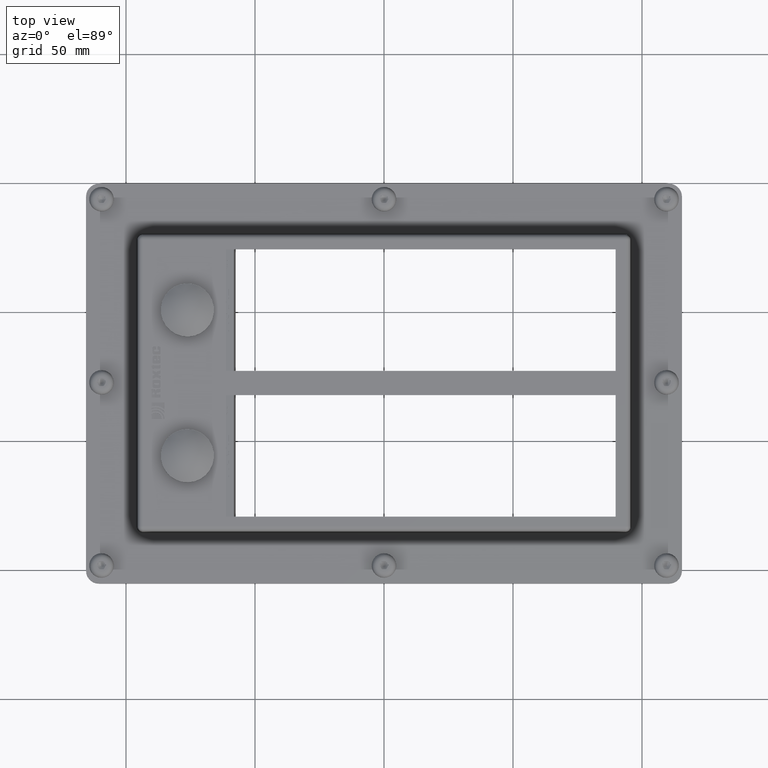
[diagram: clean part render]
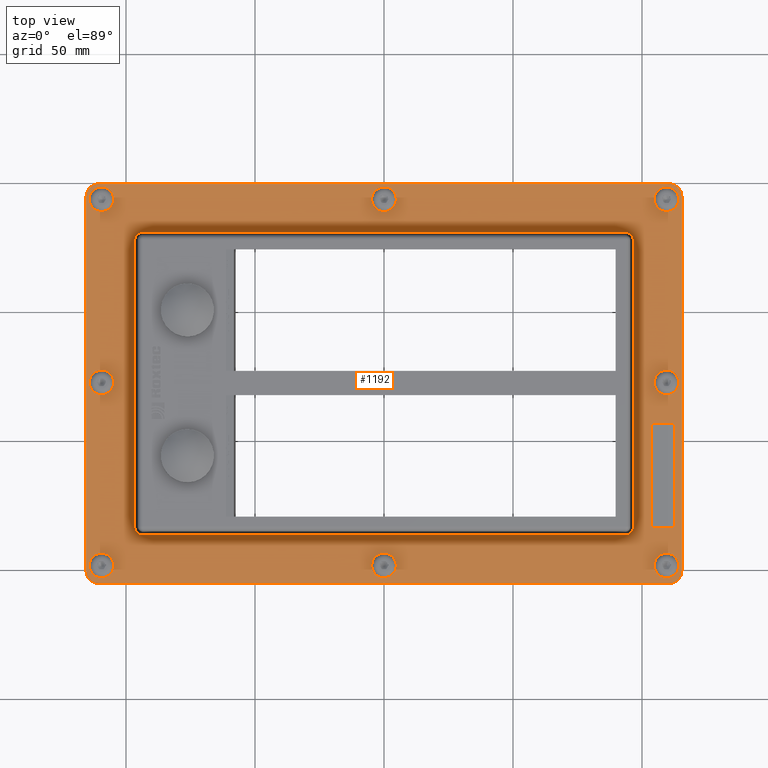
[diagram: same view with one face highlighted and labeled with its STEP entity id]
A machine part, top view. The second image highlights one B-rep face of the part: STEP entity #1192.
In plain terms, the highlighted planar face has unit normal (0, 0, 1).
Its self-contained STEP definition (entity closure, byte-faithful):
#219=CARTESIAN_POINT('',(112.50000000000009,-43.750000000000007,18.500000000000004));
#220=VERTEX_POINT('',#219);
#227=CARTESIAN_POINT('',(103.50000000000009,-43.750000000000007,18.500000000000004));
#228=VERTEX_POINT('',#227);
#229=CARTESIAN_POINT('',(103.50000000000009,-43.750000000000007,18.500000000000004));
#230=DIRECTION('',(1.0,0.0,0.0));
#231=VECTOR('',#230,9.0);
#232=LINE('',#229,#231);
#233=EDGE_CURVE('',#228,#220,#232,.T.);
#258=CARTESIAN_POINT('',(103.50000000000009,-84.250000000000028,18.500000000000004));
#259=VERTEX_POINT('',#258);
#260=CARTESIAN_POINT('',(103.50000000000009,-84.250000000000028,18.500000000000004));
#261=DIRECTION('',(0.0,1.0,0.0));
#262=VECTOR('',#261,40.500000000000007);
#263=LINE('',#260,#262);
#264=EDGE_CURVE('',#259,#228,#263,.T.);
#289=CARTESIAN_POINT('',(112.50000000000009,-84.250000000000028,18.500000000000004));
#290=VERTEX_POINT('',#289);
#291=CARTESIAN_POINT('',(112.50000000000009,-84.250000000000028,18.500000000000004));
#292=DIRECTION('',(-1.0,0.0,0.0));
#293=VECTOR('',#292,9.0);
#294=LINE('',#291,#293);
#295=EDGE_CURVE('',#290,#259,#294,.T.);
#318=CARTESIAN_POINT('',(112.50000000000009,-43.750000000000007,18.500000000000004));
#319=DIRECTION('',(0.0,-1.0,0.0));
#320=VECTOR('',#319,40.500000000000007);
#321=LINE('',#318,#320);
#322=EDGE_CURVE('',#220,#290,#321,.T.);
#423=CARTESIAN_POINT('',(-96.617850793561018,-83.86796502436853,18.500000000000004));
#424=VERTEX_POINT('',#423);
#432=CARTESIAN_POINT('',(-93.61796502436853,-86.867850793561018,18.500000000000004));
#433=VERTEX_POINT('',#432);
#434=CARTESIAN_POINT('',(-93.617736558403806,-83.867736558403806,18.500000000000004));
#435=DIRECTION('',(0.0,0.0,1.0));
#436=DIRECTION('',(-0.707106781186548,-0.707106781186548,0.0));
#437=AXIS2_PLACEMENT_3D('',#434,#435,#436);
#438=ELLIPSE('',#437,3.000228465964866,3.000000000000003);
#439=EDGE_CURVE('',#424,#433,#438,.T.);
#467=CARTESIAN_POINT('',(-96.617850793561018,27.367965024368459,18.500000000000004));
#468=VERTEX_POINT('',#467);
#476=CARTESIAN_POINT('',(-96.617850793561018,27.367965024368459,18.500000000000004));
#477=DIRECTION('',(0.0,-1.0,0.0));
#478=VECTOR('',#477,111.235930048737);
#479=LINE('',#476,#478);
#480=EDGE_CURVE('',#468,#424,#479,.T.);
#497=CARTESIAN_POINT('',(93.61796502436853,-86.867850793561004,18.500000000000004));
#498=VERTEX_POINT('',#497);
#515=CARTESIAN_POINT('',(-93.61796502436853,-86.867850793561004,18.500000000000004));
#516=DIRECTION('',(1.0,0.0,0.0));
#517=VECTOR('',#516,187.23593004873706);
#518=LINE('',#515,#517);
#519=EDGE_CURVE('',#433,#498,#518,.T.);
#607=CARTESIAN_POINT('',(-93.617965024368573,30.367850793560972,18.500000000000004));
#608=VERTEX_POINT('',#607);
#616=CARTESIAN_POINT('',(-93.617736558403863,27.36773655840377,18.500000000000004));
#617=DIRECTION('',(0.0,0.0,1.0));
#618=DIRECTION('',(-0.707106781186547,0.707106781186548,0.0));
#619=AXIS2_PLACEMENT_3D('',#616,#617,#618);
#620=ELLIPSE('',#619,3.000228465964869,3.000000000000007);
#621=EDGE_CURVE('',#608,#468,#620,.T.);
#715=CARTESIAN_POINT('',(96.617850793561018,-83.867965024368488,18.500000000000004));
#716=VERTEX_POINT('',#715);
#734=CARTESIAN_POINT('',(93.617736558403863,-83.867736558403806,18.500000000000004));
#735=DIRECTION('',(0.0,0.0,1.0));
#736=DIRECTION('',(0.707106781186555,-0.70710678118654,0.0));
#737=AXIS2_PLACEMENT_3D('',#734,#735,#736);
#738=ELLIPSE('',#737,3.000228465964856,2.999999999999993);
#739=EDGE_CURVE('',#498,#716,#738,.T.);
#751=CARTESIAN_POINT('',(93.61796502436853,30.367850793561011,18.500000000000004));
#752=VERTEX_POINT('',#751);
#760=CARTESIAN_POINT('',(93.61796502436853,30.367850793561011,18.500000000000004));
#761=DIRECTION('',(-1.0,0.0,0.0));
#762=VECTOR('',#761,187.23593004873709);
#763=LINE('',#760,#762);
#764=EDGE_CURVE('',#752,#608,#763,.T.);
#781=CARTESIAN_POINT('',(96.617850793561018,27.367965024368495,18.500000000000004));
#782=VERTEX_POINT('',#781);
#799=CARTESIAN_POINT('',(96.617850793561018,-83.867965024368488,18.500000000000004));
#800=DIRECTION('',(0.0,1.0,0.0));
#801=VECTOR('',#800,111.23593004873698);
#802=LINE('',#799,#801);
#803=EDGE_CURVE('',#716,#782,#802,.T.);
#898=CARTESIAN_POINT('',(93.617736558403806,27.367736558403788,18.500000000000004));
#899=DIRECTION('',(0.0,0.0,1.0));
#900=DIRECTION('',(0.707106781186552,0.707106781186543,0.0));
#901=AXIS2_PLACEMENT_3D('',#898,#899,#900);
#902=ELLIPSE('',#901,3.000228465964866,3.000000000000004);
#903=EDGE_CURVE('',#782,#752,#902,.T.);
#1013=CARTESIAN_POINT('',(-127.05000000000011,-113.50000000000011,18.500000000000004));
#1014=DIRECTION('',(0.0,0.0,1.0));
#1015=DIRECTION('',(1.0,0.0,0.0));
#1016=AXIS2_PLACEMENT_3D('',#1013,#1014,#1015);
#1017=PLANE('',#1016);
#1018=CARTESIAN_POINT('',(-110.50000000000003,-105.7500000000001,18.500000000000004));
#1019=VERTEX_POINT('',#1018);
#1020=CARTESIAN_POINT('',(-115.50000000000003,-100.7500000000001,18.500000000000004));
#1021=VERTEX_POINT('',#1020);
#1022=CARTESIAN_POINT('',(-110.50000000000003,-100.7500000000001,18.500000000000004));
#1023=DIRECTION('',(0.0,0.0,-1.0));
#1024=DIRECTION('',(-0.707106781186547,-0.707106781186547,0.0));
#1025=AXIS2_PLACEMENT_3D('',#1022,#1023,#1024);
#1026=CIRCLE('',#1025,5.000000000000001);
#1027=EDGE_CURVE('',#1019,#1021,#1026,.T.);
#1028=ORIENTED_EDGE('',*,*,#1027,.F.);
#1029=CARTESIAN_POINT('',(110.5000000000001,-105.7500000000001,18.500000000000004));
#1030=VERTEX_POINT('',#1029);
#1031=CARTESIAN_POINT('',(110.5000000000001,-105.7500000000001,18.500000000000004));
#1032=DIRECTION('',(-1.0,0.0,0.0));
#1033=VECTOR('',#1032,221.00000000000011);
#1034=LINE('',#1031,#1033);
#1035=EDGE_CURVE('',#1030,#1019,#1034,.T.);
#1036=ORIENTED_EDGE('',*,*,#1035,.F.);
#1037=CARTESIAN_POINT('',(115.5000000000001,-100.7500000000001,18.500000000000004));
#1038=VERTEX_POINT('',#1037);
#1039=CARTESIAN_POINT('',(110.5000000000001,-100.7500000000001,18.500000000000004));
#1040=DIRECTION('',(0.0,0.0,-1.0));
#1041=DIRECTION('',(0.707106781186547,-0.707106781186547,0.0));
#1042=AXIS2_PLACEMENT_3D('',#1039,#1040,#1041);
#1043=CIRCLE('',#1042,5.000000000000001);
#1044=EDGE_CURVE('',#1038,#1030,#1043,.T.);
#1045=ORIENTED_EDGE('',*,*,#1044,.F.);
#1046=CARTESIAN_POINT('',(115.5000000000001,44.250000000000057,18.500000000000004));
#1047=VERTEX_POINT('',#1046);
#1048=CARTESIAN_POINT('',(115.5000000000001,44.250000000000057,18.500000000000004));
#1049=DIRECTION('',(0.0,-1.0,0.0));
#1050=VECTOR('',#1049,145.00000000000017);
#1051=LINE('',#1048,#1050);
#1052=EDGE_CURVE('',#1047,#1038,#1051,.T.);
#1053=ORIENTED_EDGE('',*,*,#1052,.F.);
#1054=CARTESIAN_POINT('',(110.5000000000001,49.250000000000057,18.500000000000004));
#1055=VERTEX_POINT('',#1054);
#1056=CARTESIAN_POINT('',(110.5000000000001,44.250000000000057,18.500000000000004));
#1057=DIRECTION('',(0.0,0.0,-1.0));
#1058=DIRECTION('',(0.707106781186545,0.70710678118655,0.0));
#1059=AXIS2_PLACEMENT_3D('',#1056,#1057,#1058);
#1060=CIRCLE('',#1059,4.999999999999996);
#1061=EDGE_CURVE('',#1055,#1047,#1060,.T.);
#1062=ORIENTED_EDGE('',*,*,#1061,.F.);
#1063=CARTESIAN_POINT('',(-110.5000000000001,49.25,18.500000000000004));
#1064=VERTEX_POINT('',#1063);
#1065=CARTESIAN_POINT('',(-110.5000000000001,49.25,18.500000000000004));
#1066=DIRECTION('',(1.0,0.0,0.0));
#1067=VECTOR('',#1066,221.0000000000002);
#1068=LINE('',#1065,#1067);
#1069=EDGE_CURVE('',#1064,#1055,#1068,.T.);
#1070=ORIENTED_EDGE('',*,*,#1069,.F.);
#1071=CARTESIAN_POINT('',(-115.5000000000001,44.250000000000007,18.500000000000004));
#1072=VERTEX_POINT('',#1071);
#1073=CARTESIAN_POINT('',(-110.5000000000001,44.250000000000007,18.500000000000004));
#1074=DIRECTION('',(0.0,0.0,-1.0));
#1075=DIRECTION('',(-0.707106781186547,0.707106781186547,0.0));
#1076=AXIS2_PLACEMENT_3D('',#1073,#1074,#1075);
#1077=CIRCLE('',#1076,5.000000000000001);
#1078=EDGE_CURVE('',#1072,#1064,#1077,.T.);
#1079=ORIENTED_EDGE('',*,*,#1078,.F.);
#1080=CARTESIAN_POINT('',(-115.50000000000003,-100.7500000000001,18.500000000000004));
#1081=DIRECTION('',(0.0,1.0,0.0));
#1082=VECTOR('',#1081,145.00000000000011);
#1083=LINE('',#1080,#1082);
#1084=EDGE_CURVE('',#1021,#1072,#1083,.T.);
#1085=ORIENTED_EDGE('',*,*,#1084,.F.);
#1086=EDGE_LOOP('',(#1028,#1036,#1045,#1053,#1062,#1070,#1079,#1085));
#1087=FACE_OUTER_BOUND('',#1086,.T.);
#1088=ORIENTED_EDGE('',*,*,#233,.T.);
#1089=ORIENTED_EDGE('',*,*,#322,.T.);
#1090=ORIENTED_EDGE('',*,*,#295,.T.);
#1091=ORIENTED_EDGE('',*,*,#264,.T.);
#1092=EDGE_LOOP('',(#1088,#1089,#1090,#1091));
#1093=FACE_BOUND('',#1092,.T.);
#1094=CARTESIAN_POINT('',(2.750000000000001,43.250000000000163,18.500000000000004));
#1095=VERTEX_POINT('',#1094);
#1096=CARTESIAN_POINT('',(-7.915805E-032,43.250000000000163,18.500000000000004));
#1097=DIRECTION('',(0.0,0.0,-1.0));
#1098=DIRECTION('',(-1.0,0.0,0.0));
#1099=AXIS2_PLACEMENT_3D('',#1096,#1097,#1098);
#1100=CIRCLE('',#1099,2.750000000000001);
#1101=EDGE_CURVE('',#1095,#1095,#1100,.T.);
#1102=ORIENTED_EDGE('',*,*,#1101,.T.);
#1103=EDGE_LOOP('',(#1102));
#1104=FACE_BOUND('',#1103,.T.);
#1105=CARTESIAN_POINT('',(112.25000000000023,43.250000000000227,18.500000000000004));
#1106=VERTEX_POINT('',#1105);
#1107=CARTESIAN_POINT('',(109.50000000000024,43.250000000000227,18.500000000000004));
#1108=DIRECTION('',(0.0,0.0,-1.0));
#1109=DIRECTION('',(-1.0,0.0,0.0));
#1110=AXIS2_PLACEMENT_3D('',#1107,#1108,#1109);
#1111=CIRCLE('',#1110,2.750000000000001);
#1112=EDGE_CURVE('',#1106,#1106,#1111,.T.);
#1113=ORIENTED_EDGE('',*,*,#1112,.T.);
#1114=EDGE_LOOP('',(#1113));
#1115=FACE_BOUND('',#1114,.T.);
#1116=CARTESIAN_POINT('',(-106.7500000000002,43.250000000000163,18.500000000000004));
#1117=VERTEX_POINT('',#1116);
#1118=CARTESIAN_POINT('',(-109.5000000000002,43.250000000000163,18.500000000000004));
#1119=DIRECTION('',(0.0,0.0,-1.0));
#1120=DIRECTION('',(-1.0,0.0,0.0));
#1121=AXIS2_PLACEMENT_3D('',#1118,#1119,#1120);
#1122=CIRCLE('',#1121,2.750000000000001);
#1123=EDGE_CURVE('',#1117,#1117,#1122,.T.);
#1124=ORIENTED_EDGE('',*,*,#1123,.T.);
#1125=EDGE_LOOP('',(#1124));
#1126=FACE_BOUND('',#1125,.T.);
#1127=CARTESIAN_POINT('',(-106.7500000000002,-28.250000000000046,18.500000000000004));
#1128=VERTEX_POINT('',#1127);
#1129=CARTESIAN_POINT('',(-109.5000000000002,-28.250000000000046,18.500000000000004));
#1130=DIRECTION('',(0.0,0.0,-1.0));
#1131=DIRECTION('',(-1.0,0.0,0.0));
#1132=AXIS2_PLACEMENT_3D('',#1129,#1130,#1131);
#1133=CIRCLE('',#1132,2.750000000000001);
#1134=EDGE_CURVE('',#1128,#1128,#1133,.T.);
#1135=ORIENTED_EDGE('',*,*,#1134,.T.);
#1136=EDGE_LOOP('',(#1135));
#1137=FACE_BOUND('',#1136,.T.);
#1138=CARTESIAN_POINT('',(112.25000000000023,-28.250000000000007,18.500000000000004));
#1139=VERTEX_POINT('',#1138);
#1140=CARTESIAN_POINT('',(109.50000000000024,-28.250000000000007,18.500000000000004));
#1141=DIRECTION('',(0.0,0.0,-1.0));
#1142=DIRECTION('',(-1.0,0.0,0.0));
#1143=AXIS2_PLACEMENT_3D('',#1140,#1141,#1142);
#1144=CIRCLE('',#1143,2.750000000000001);
#1145=EDGE_CURVE('',#1139,#1139,#1144,.T.);
#1146=ORIENTED_EDGE('',*,*,#1145,.T.);
#1147=EDGE_LOOP('',(#1146));
#1148=FACE_BOUND('',#1147,.T.);
#1149=CARTESIAN_POINT('',(-106.7500000000002,-99.750000000000242,18.500000000000004));
#1150=VERTEX_POINT('',#1149);
#1151=CARTESIAN_POINT('',(-109.5000000000002,-99.750000000000242,18.500000000000004));
#1152=DIRECTION('',(0.0,0.0,-1.0));
#1153=DIRECTION('',(-1.0,0.0,0.0));
#1154=AXIS2_PLACEMENT_3D('',#1151,#1152,#1153);
#1155=CIRCLE('',#1154,2.750000000000001);
#1156=EDGE_CURVE('',#1150,#1150,#1155,.T.);
#1157=ORIENTED_EDGE('',*,*,#1156,.T.);
#1158=EDGE_LOOP('',(#1157));
#1159=FACE_BOUND('',#1158,.T.);
#1160=CARTESIAN_POINT('',(112.25000000000023,-99.750000000000256,18.500000000000004));
#1161=VERTEX_POINT('',#1160);
#1162=CARTESIAN_POINT('',(109.50000000000024,-99.750000000000256,18.500000000000004));
#1163=DIRECTION('',(0.0,0.0,-1.0));
#1164=DIRECTION('',(-1.0,0.0,0.0));
#1165=AXIS2_PLACEMENT_3D('',#1162,#1163,#1164);
#1166=CIRCLE('',#1165,2.750000000000001);
#1167=EDGE_CURVE('',#1161,#1161,#1166,.T.);
#1168=ORIENTED_EDGE('',*,*,#1167,.T.);
#1169=EDGE_LOOP('',(#1168));
#1170=FACE_BOUND('',#1169,.T.);
#1171=CARTESIAN_POINT('',(2.750000000000008,-99.750000000000242,18.500000000000004));
#1172=VERTEX_POINT('',#1171);
#1173=CARTESIAN_POINT('',(6.651726E-015,-99.750000000000242,18.500000000000004));
#1174=DIRECTION('',(0.0,0.0,-1.0));
#1175=DIRECTION('',(-1.0,0.0,0.0));
#1176=AXIS2_PLACEMENT_3D('',#1173,#1174,#1175);
#1177=CIRCLE('',#1176,2.750000000000001);
#1178=EDGE_CURVE('',#1172,#1172,#1177,.T.);
#1179=ORIENTED_EDGE('',*,*,#1178,.T.);
#1180=EDGE_LOOP('',(#1179));
#1181=FACE_BOUND('',#1180,.T.);
#1182=ORIENTED_EDGE('',*,*,#439,.F.);
#1183=ORIENTED_EDGE('',*,*,#480,.F.);
#1184=ORIENTED_EDGE('',*,*,#621,.F.);
#1185=ORIENTED_EDGE('',*,*,#764,.F.);
#1186=ORIENTED_EDGE('',*,*,#903,.F.);
#1187=ORIENTED_EDGE('',*,*,#803,.F.);
#1188=ORIENTED_EDGE('',*,*,#739,.F.);
#1189=ORIENTED_EDGE('',*,*,#519,.F.);
#1190=EDGE_LOOP('',(#1182,#1183,#1184,#1185,#1186,#1187,#1188,#1189));
#1191=FACE_BOUND('',#1190,.T.);
#1192=ADVANCED_FACE('',(#1087,#1093,#1104,#1115,#1126,#1137,#1148,#1159,#1170,#1181,#1191),#1017,.T.);